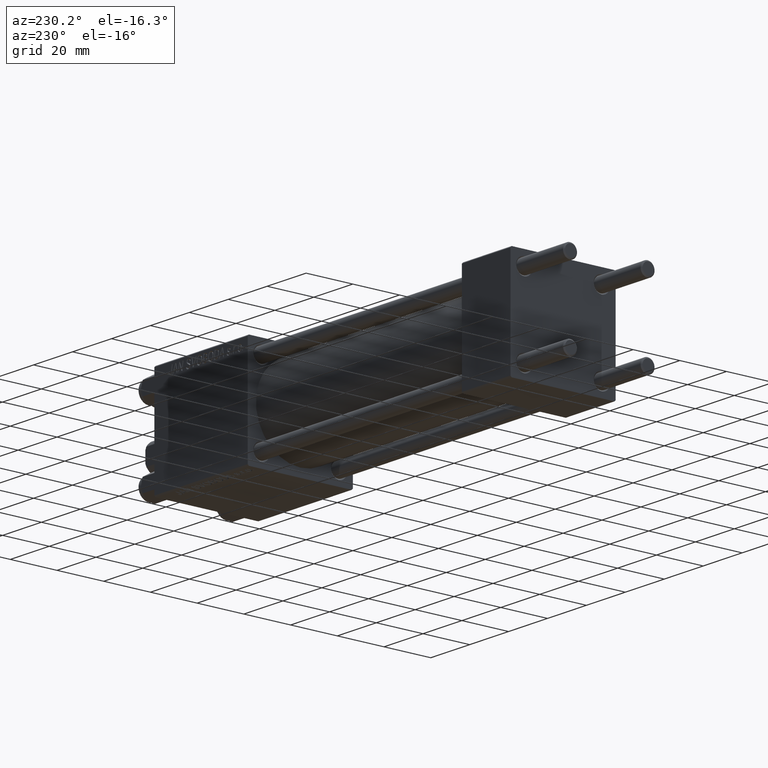
[diagram: clean part render]
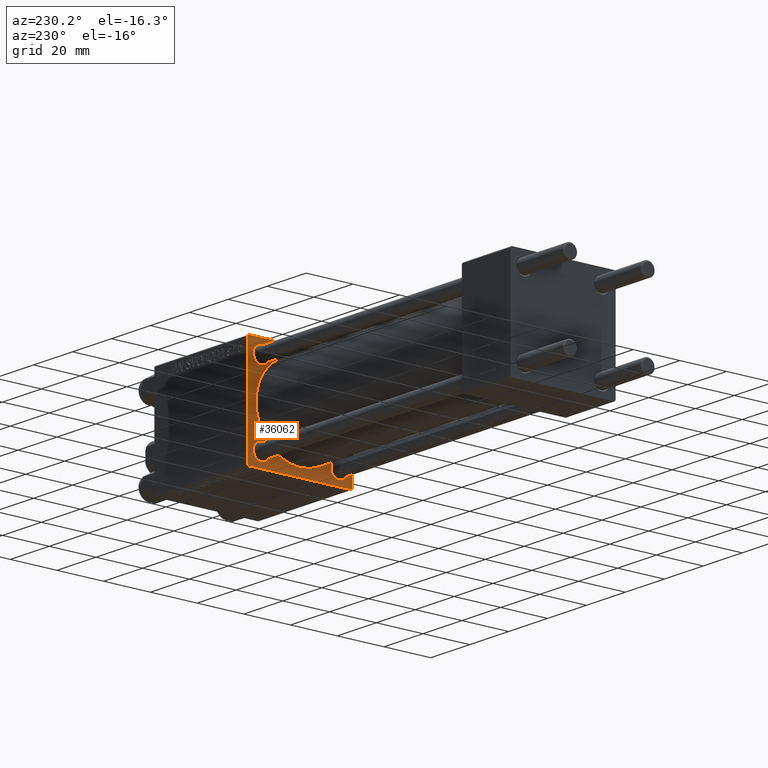
[diagram: same view with one face highlighted and labeled with its STEP entity id]
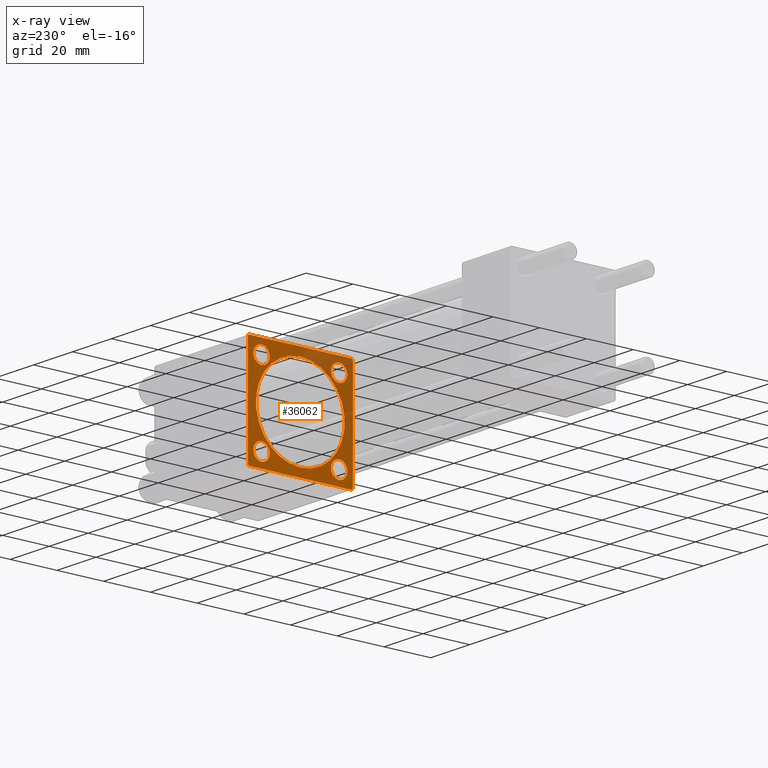
[diagram: x-ray of the same camera — body ghosted, the highlighted face saturated]
A machine part, auxiliary view. The second image highlights one B-rep face of the part: STEP entity #36062.
The next image is the same camera in x-ray: the body ghosted, the highlighted face saturated — about 33% of this face is hidden behind the body in this view.
In plain terms, the highlighted planar face has unit normal (-1, 0, 0).
Its self-contained STEP definition (entity closure, byte-faithful):
#81 = CARTESIAN_POINT ( 'NONE',  ( 135.0000000000000000, 16.59999999999999787, -13.10000000000000142 ) ) ;
#204 = CARTESIAN_POINT ( 'NONE',  ( 135.0000000000000000, 16.59999999999999787, -16.60000000000000497 ) ) ;
#393 = ORIENTED_EDGE ( 'NONE', *, *, #47107, .T. ) ;
#703 = ORIENTED_EDGE ( 'NONE', *, *, #12335, .T. ) ;
#960 = DIRECTION ( 'NONE',  ( 0.000000000000000000, 0.000000000000000000, 1.000000000000000000 ) ) ;
#1362 = VERTEX_POINT ( 'NONE', #17766 ) ;
#1787 = EDGE_CURVE ( 'NONE', #32672, #32616, #33518, .T. ) ;
#2404 = ORIENTED_EDGE ( 'NONE', *, *, #8851, .T. ) ;
#3536 = CARTESIAN_POINT ( 'NONE',  ( 135.0000000000000000, -21.99999999999998224, 22.49999999999999289 ) ) ;
#3616 = CARTESIAN_POINT ( 'NONE',  ( 135.0000000000000000, 22.50000000000000355, 22.50000000000000355 ) ) ;
#3772 = EDGE_CURVE ( 'NONE', #32616, #32672, #32679, .T. ) ;
#4580 = CARTESIAN_POINT ( 'NONE',  ( 135.0000000000000000, -22.49999999999999645, 21.99999999999999289 ) ) ;
#5092 = VERTEX_POINT ( 'NONE', #6014 ) ;
#6014 = CARTESIAN_POINT ( 'NONE',  ( 135.0000000000000000, 16.59999999999999787, 20.10000000000003340 ) ) ;
#6340 = CARTESIAN_POINT ( 'NONE',  ( 135.0000000000000000, 16.59999999999999787, 16.60000000000000497 ) ) ;
#6420 = EDGE_LOOP ( 'NONE', ( #26390, #2404 ) ) ;
#6612 = VERTEX_POINT ( 'NONE', #16657 ) ;
#7153 = DIRECTION ( 'NONE',  ( 0.000000000000000000, -1.000000000000000000, -2.312964634635742957E-16 ) ) ;
#7347 = FACE_BOUND ( 'NONE', #31030, .T. ) ;
#7647 = CARTESIAN_POINT ( 'NONE',  ( 135.0000000000000000, -16.59999999999999076, -20.10000000000000853 ) ) ;
#8851 = EDGE_CURVE ( 'NONE', #45501, #1362, #40043, .T. ) ;
#9025 = DIRECTION ( 'NONE',  ( 0.000000000000000000, 0.7071067811865474617, -0.7071067811865474617 ) ) ;
#9081 = CIRCLE ( 'NONE', #14709, 3.500000000000031086 ) ;
#9083 = CARTESIAN_POINT ( 'NONE',  ( 135.0000000000000000, -22.25000000000013500, -22.24999999999982947 ) ) ;
#9091 = LINE ( 'NONE', #47429, #44564 ) ;
#9841 = VERTEX_POINT ( 'NONE', #3536 ) ;
#10106 = AXIS2_PLACEMENT_3D ( 'NONE', #29349, #21551, #22301 ) ;
#10138 = DIRECTION ( 'NONE',  ( 0.000000000000000000, 0.000000000000000000, -1.000000000000000000 ) ) ;
#10582 = CARTESIAN_POINT ( 'NONE',  ( 135.0000000000000000, 16.59999999999999787, -20.10000000000000853 ) ) ;
#10861 = ORIENTED_EDGE ( 'NONE', *, *, #47479, .T. ) ;
#11402 = VERTEX_POINT ( 'NONE', #39340 ) ;
#12073 = FACE_OUTER_BOUND ( 'NONE', #31162, .T. ) ;
#12335 = EDGE_CURVE ( 'NONE', #49796, #11402, #13859, .T. ) ;
#13053 = CARTESIAN_POINT ( 'NONE',  ( 135.0000000000000000, 22.50000000000000355, 22.00000000000000355 ) ) ;
#13072 = CIRCLE ( 'NONE', #30794, 3.500000000000003109 ) ;
#13241 = DIRECTION ( 'NONE',  ( 0.000000000000000000, -1.000000000000000000, -7.709882115452476934E-17 ) ) ;
#13663 = CARTESIAN_POINT ( 'NONE',  ( 135.0000000000000000, 16.59999999999999787, 16.60000000000000497 ) ) ;
#13859 = LINE ( 'NONE', #9083, #48318 ) ;
#14168 = DIRECTION ( 'NONE',  ( 1.000000000000000000, -0.000000000000000000, 0.000000000000000000 ) ) ;
#14709 = AXIS2_PLACEMENT_3D ( 'NONE', #6340, #29545, #45168 ) ;
#14747 = VECTOR ( 'NONE', #7153, 1000.000000000000000 ) ;
#15469 = DIRECTION ( 'NONE',  ( 0.000000000000000000, 0.000000000000000000, -1.000000000000000000 ) ) ;
#16119 = FACE_BOUND ( 'NONE', #16497, .T. ) ;
#16497 = EDGE_LOOP ( 'NONE', ( #45209, #36758 ) ) ;
#16657 = CARTESIAN_POINT ( 'NONE',  ( 135.0000000000000000, 22.00000000000000355, -22.49999999999999645 ) ) ;
#17119 = VERTEX_POINT ( 'NONE', #10582 ) ;
#17724 = DIRECTION ( 'NONE',  ( 0.000000000000000000, 0.000000000000000000, -1.000000000000000000 ) ) ;
#17766 = CARTESIAN_POINT ( 'NONE',  ( 135.0000000000000000, -16.59999999999999076, -13.10000000000000320 ) ) ;
#18044 = EDGE_LOOP ( 'NONE', ( #35177, #10861 ) ) ;
#18192 = AXIS2_PLACEMENT_3D ( 'NONE', #36876, #33849, #17724 ) ;
#18204 = DIRECTION ( 'NONE',  ( 0.000000000000000000, 0.000000000000000000, 1.000000000000000000 ) ) ;
#19245 = ORIENTED_EDGE ( 'NONE', *, *, #46905, .F. ) ;
#19678 = ORIENTED_EDGE ( 'NONE', *, *, #1787, .T. ) ;
#20000 = CARTESIAN_POINT ( 'NONE',  ( 135.0000000000000000, 22.50000000000000355, 22.50000000000000355 ) ) ;
#20680 = CARTESIAN_POINT ( 'NONE',  ( 135.0000000000000000, -22.24999999999999289, 22.24999999999999289 ) ) ;
#20978 = CARTESIAN_POINT ( 'NONE',  ( 135.0000000000000000, 2.326828918379970970E-15, -19.00000000000000000 ) ) ;
#21229 = CIRCLE ( 'NONE', #39702, 3.500000000000003109 ) ;
#21329 = EDGE_CURVE ( 'NONE', #27283, #6612, #9091, .T. ) ;
#21422 = VERTEX_POINT ( 'NONE', #4580 ) ;
#21439 = DIRECTION ( 'NONE',  ( 0.000000000000000000, -0.7071067811865426878, 0.7071067811865524577 ) ) ;
#21551 = DIRECTION ( 'NONE',  ( 1.000000000000000000, -0.000000000000000000, 0.000000000000000000 ) ) ;
#21575 = CARTESIAN_POINT ( 'NONE',  ( 135.0000000000000000, 22.50000000000000355, -22.49999999999999645 ) ) ;
#21602 = CARTESIAN_POINT ( 'NONE',  ( 135.0000000000000000, -16.59999999999999076, 13.09999999999997655 ) ) ;
#22199 = EDGE_CURVE ( 'NONE', #24666, #5092, #44491, .T. ) ;
#22301 = DIRECTION ( 'NONE',  ( 0.000000000000000000, 0.000000000000000000, 1.000000000000000000 ) ) ;
#22340 = ORIENTED_EDGE ( 'NONE', *, *, #23931, .T. ) ;
#22751 = FACE_BOUND ( 'NONE', #18044, .T. ) ;
#23079 = EDGE_CURVE ( 'NONE', #24091, #44702, #27626, .T. ) ;
#23275 = ORIENTED_EDGE ( 'NONE', *, *, #3772, .T. ) ;
#23678 = DIRECTION ( 'NONE',  ( 1.000000000000000000, -0.000000000000000000, 0.000000000000000000 ) ) ;
#23762 = CARTESIAN_POINT ( 'NONE',  ( 135.0000000000000000, -16.59999999999999076, -16.60000000000000853 ) ) ;
#23924 = PLANE ( 'NONE',  #40886 ) ;
#23931 = EDGE_CURVE ( 'NONE', #6612, #49796, #36185, .T. ) ;
#24023 = DIRECTION ( 'NONE',  ( 0.000000000000000000, 0.000000000000000000, -1.000000000000000000 ) ) ;
#24091 = VERTEX_POINT ( 'NONE', #31364 ) ;
#24347 = DIRECTION ( 'NONE',  ( 0.000000000000000000, 0.000000000000000000, 1.000000000000000000 ) ) ;
#24666 = VERTEX_POINT ( 'NONE', #26801 ) ;
#24766 = ORIENTED_EDGE ( 'NONE', *, *, #22199, .T. ) ;
#25270 = DIRECTION ( 'NONE',  ( 1.000000000000000000, 0.000000000000000000, 0.000000000000000000 ) ) ;
#25524 = CARTESIAN_POINT ( 'NONE',  ( 135.0000000000000000, 0.000000000000000000, 0.000000000000000000 ) ) ;
#25912 = EDGE_CURVE ( 'NONE', #21422, #9841, #35539, .T. ) ;
#25999 = AXIS2_PLACEMENT_3D ( 'NONE', #25524, #25270, #10138 ) ;
#26390 = ORIENTED_EDGE ( 'NONE', *, *, #27210, .T. ) ;
#26801 = CARTESIAN_POINT ( 'NONE',  ( 135.0000000000000000, 16.59999999999999787, 13.09999999999997300 ) ) ;
#27064 = LINE ( 'NONE', #39144, #42052 ) ;
#27198 = ORIENTED_EDGE ( 'NONE', *, *, #42155, .F. ) ;
#27210 = EDGE_CURVE ( 'NONE', #1362, #45501, #47841, .T. ) ;
#27283 = VERTEX_POINT ( 'NONE', #49574 ) ;
#27456 = DIRECTION ( 'NONE',  ( -1.000000000000000000, 0.000000000000000000, -0.000000000000000000 ) ) ;
#27626 = CIRCLE ( 'NONE', #25999, 19.00000000000000000 ) ;
#28573 = ORIENTED_EDGE ( 'NONE', *, *, #37524, .T. ) ;
#28820 = ORIENTED_EDGE ( 'NONE', *, *, #25912, .T. ) ;
#29349 = CARTESIAN_POINT ( 'NONE',  ( 135.0000000000000000, -16.59999999999999076, 16.60000000000000853 ) ) ;
#29545 = DIRECTION ( 'NONE',  ( 1.000000000000000000, -0.000000000000000000, 0.000000000000000000 ) ) ;
#29800 = FACE_BOUND ( 'NONE', #40163, .T. ) ;
#30398 = DIRECTION ( 'NONE',  ( 0.000000000000000000, 0.000000000000000000, 1.000000000000000000 ) ) ;
#30794 = AXIS2_PLACEMENT_3D ( 'NONE', #48019, #39938, #47760 ) ;
#30810 = DIRECTION ( 'NONE',  ( 0.000000000000000000, 0.000000000000000000, 1.000000000000000000 ) ) ;
#30838 = EDGE_CURVE ( 'NONE', #44702, #24091, #35885, .T. ) ;
#31030 = EDGE_LOOP ( 'NONE', ( #19678, #23275 ) ) ;
#31162 = EDGE_LOOP ( 'NONE', ( #22340, #703, #27198, #28820, #19245, #28573, #44489, #40652 ) ) ;
#31214 = AXIS2_PLACEMENT_3D ( 'NONE', #23762, #42158, #30810 ) ;
#31364 = CARTESIAN_POINT ( 'NONE',  ( 135.0000000000000000, 0.000000000000000000, 19.00000000000000000 ) ) ;
#31763 = DIRECTION ( 'NONE',  ( -0.000000000000000000, 0.7071067811865474617, 0.7071067811865474617 ) ) ;
#32616 = VERTEX_POINT ( 'NONE', #21602 ) ;
#32672 = VERTEX_POINT ( 'NONE', #36452 ) ;
#32679 = CIRCLE ( 'NONE', #10106, 3.500000000000031086 ) ;
#33193 = AXIS2_PLACEMENT_3D ( 'NONE', #13663, #14168, #18204 ) ;
#33518 = CIRCLE ( 'NONE', #35917, 3.500000000000031086 ) ;
#33849 = DIRECTION ( 'NONE',  ( 1.000000000000000000, 0.000000000000000000, 0.000000000000000000 ) ) ;
#34866 = VECTOR ( 'NONE', #13241, 1000.000000000000000 ) ;
#35068 = VERTEX_POINT ( 'NONE', #13053 ) ;
#35177 = ORIENTED_EDGE ( 'NONE', *, *, #41887, .T. ) ;
#35500 = CARTESIAN_POINT ( 'NONE',  ( 135.0000000000000000, -16.59999999999999076, 16.60000000000000853 ) ) ;
#35539 = LINE ( 'NONE', #20680, #36520 ) ;
#35753 = LINE ( 'NONE', #46865, #35983 ) ;
#35885 = CIRCLE ( 'NONE', #18192, 19.00000000000000000 ) ;
#35917 = AXIS2_PLACEMENT_3D ( 'NONE', #35500, #23678, #960 ) ;
#35923 = DIRECTION ( 'NONE',  ( 1.000000000000000000, -0.000000000000000000, 0.000000000000000000 ) ) ;
#35983 = VECTOR ( 'NONE', #9025, 1000.000000000000114 ) ;
#36062 = ADVANCED_FACE ( 'NONE', ( #7347, #29800, #22751, #37615, #16119, #12073 ), #23924, .T. ) ;
#36185 = LINE ( 'NONE', #21575, #34866 ) ;
#36452 = CARTESIAN_POINT ( 'NONE',  ( 135.0000000000000000, -16.59999999999999076, 20.10000000000003695 ) ) ;
#36520 = VECTOR ( 'NONE', #31763, 1000.000000000000114 ) ;
#36758 = ORIENTED_EDGE ( 'NONE', *, *, #30838, .T. ) ;
#36876 = CARTESIAN_POINT ( 'NONE',  ( 135.0000000000000000, 0.000000000000000000, 0.000000000000000000 ) ) ;
#37197 = DIRECTION ( 'NONE',  ( 1.000000000000000000, -0.000000000000000000, 0.000000000000000000 ) ) ;
#37222 = CARTESIAN_POINT ( 'NONE',  ( 135.0000000000000000, -21.99999999999995381, -22.50000000000000000 ) ) ;
#37524 = EDGE_CURVE ( 'NONE', #44631, #35068, #35753, .T. ) ;
#37615 = FACE_BOUND ( 'NONE', #6420, .T. ) ;
#38102 = CARTESIAN_POINT ( 'NONE',  ( 135.0000000000000000, 0.000000000000000000, 0.000000000000000000 ) ) ;
#38399 = CARTESIAN_POINT ( 'NONE',  ( 135.0000000000000000, 22.00000000000000355, 22.50000000000000355 ) ) ;
#39144 = CARTESIAN_POINT ( 'NONE',  ( 135.0000000000000000, -22.49999999999999645, 22.49999999999999289 ) ) ;
#39340 = CARTESIAN_POINT ( 'NONE',  ( 135.0000000000000000, -22.49999999999999645, -21.99999999999995026 ) ) ;
#39353 = DIRECTION ( 'NONE',  ( -0.000000000000000000, -0.7071067811865474617, -0.7071067811865474617 ) ) ;
#39702 = AXIS2_PLACEMENT_3D ( 'NONE', #204, #35923, #24347 ) ;
#39938 = DIRECTION ( 'NONE',  ( 1.000000000000000000, -0.000000000000000000, 0.000000000000000000 ) ) ;
#40043 = CIRCLE ( 'NONE', #31214, 3.500000000000003109 ) ;
#40163 = EDGE_LOOP ( 'NONE', ( #393, #24766 ) ) ;
#40652 = ORIENTED_EDGE ( 'NONE', *, *, #21329, .T. ) ;
#40886 = AXIS2_PLACEMENT_3D ( 'NONE', #38102, #27456, #46858 ) ;
#41408 = EDGE_CURVE ( 'NONE', #35068, #27283, #44585, .T. ) ;
#41887 = EDGE_CURVE ( 'NONE', #45537, #17119, #13072, .T. ) ;
#42052 = VECTOR ( 'NONE', #15469, 1000.000000000000000 ) ;
#42155 = EDGE_CURVE ( 'NONE', #21422, #11402, #27064, .T. ) ;
#42158 = DIRECTION ( 'NONE',  ( 1.000000000000000000, -0.000000000000000000, 0.000000000000000000 ) ) ;
#44489 = ORIENTED_EDGE ( 'NONE', *, *, #41408, .T. ) ;
#44491 = CIRCLE ( 'NONE', #33193, 3.500000000000031086 ) ;
#44564 = VECTOR ( 'NONE', #39353, 1000.000000000000114 ) ;
#44585 = LINE ( 'NONE', #20000, #46920 ) ;
#44631 = VERTEX_POINT ( 'NONE', #38399 ) ;
#44702 = VERTEX_POINT ( 'NONE', #20978 ) ;
#44782 = CARTESIAN_POINT ( 'NONE',  ( 135.0000000000000000, -16.59999999999999076, -16.60000000000000853 ) ) ;
#45168 = DIRECTION ( 'NONE',  ( 0.000000000000000000, 0.000000000000000000, 1.000000000000000000 ) ) ;
#45209 = ORIENTED_EDGE ( 'NONE', *, *, #23079, .T. ) ;
#45501 = VERTEX_POINT ( 'NONE', #7647 ) ;
#45537 = VERTEX_POINT ( 'NONE', #81 ) ;
#46858 = DIRECTION ( 'NONE',  ( -0.000000000000000000, 0.000000000000000000, 1.000000000000000000 ) ) ;
#46865 = CARTESIAN_POINT ( 'NONE',  ( 135.0000000000000000, 22.25000000000000355, 22.25000000000000355 ) ) ;
#46905 = EDGE_CURVE ( 'NONE', #44631, #9841, #49781, .T. ) ;
#46920 = VECTOR ( 'NONE', #24023, 1000.000000000000000 ) ;
#47054 = AXIS2_PLACEMENT_3D ( 'NONE', #44782, #37197, #30398 ) ;
#47107 = EDGE_CURVE ( 'NONE', #5092, #24666, #9081, .T. ) ;
#47429 = CARTESIAN_POINT ( 'NONE',  ( 135.0000000000000000, 22.24999999999999645, -22.24999999999999645 ) ) ;
#47479 = EDGE_CURVE ( 'NONE', #17119, #45537, #21229, .T. ) ;
#47760 = DIRECTION ( 'NONE',  ( 0.000000000000000000, 0.000000000000000000, 1.000000000000000000 ) ) ;
#47841 = CIRCLE ( 'NONE', #47054, 3.500000000000003109 ) ;
#48019 = CARTESIAN_POINT ( 'NONE',  ( 135.0000000000000000, 16.59999999999999787, -16.60000000000000497 ) ) ;
#48318 = VECTOR ( 'NONE', #21439, 1000.000000000000000 ) ;
#49574 = CARTESIAN_POINT ( 'NONE',  ( 135.0000000000000000, 22.50000000000000355, -21.99999999999998224 ) ) ;
#49781 = LINE ( 'NONE', #3616, #14747 ) ;
#49796 = VERTEX_POINT ( 'NONE', #37222 ) ;